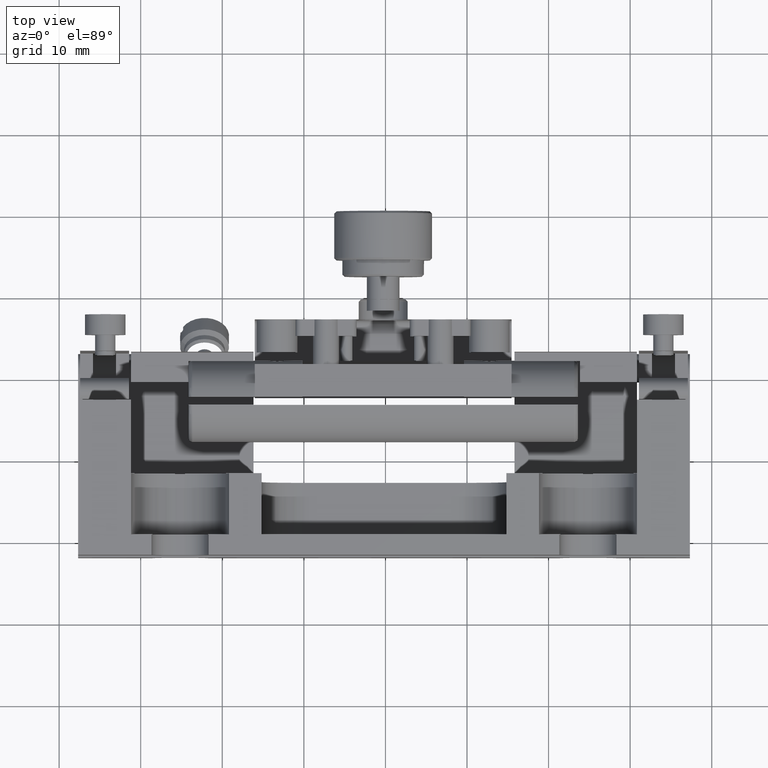
[diagram: clean part render]
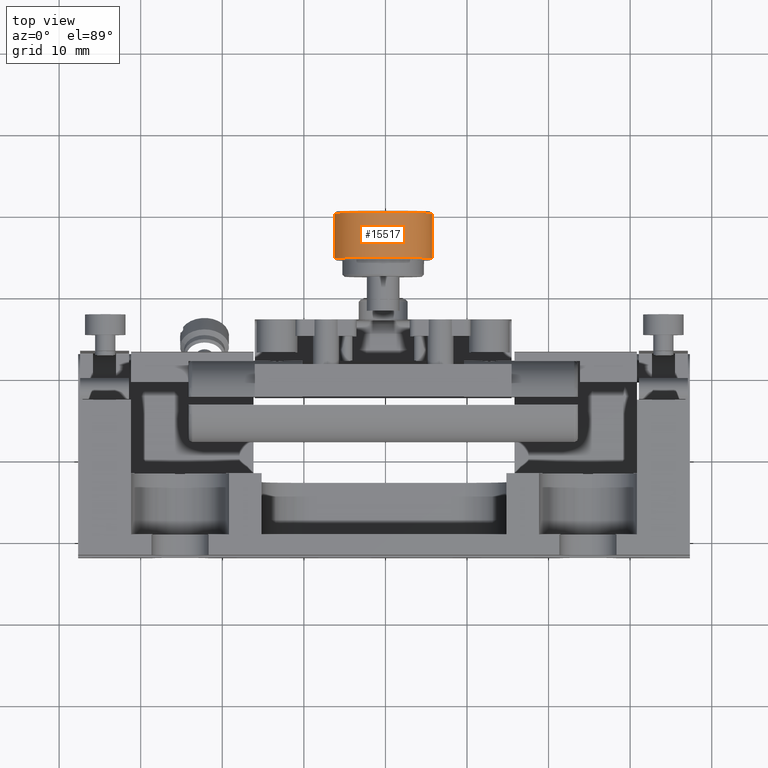
[diagram: same view with one face highlighted and labeled with its STEP entity id]
A machine part, top view. The second image highlights one B-rep face of the part: STEP entity #15517.
In plain terms, the highlighted cylindrical surface (bore or boss wall) has radius 6 mm, axis along (0, 1, 0).
Its self-contained STEP definition (entity closure, byte-faithful):
#95 = CIRCLE ( 'NONE', #6703, 6.000000000000001776 ) ;
#698 = AXIS2_PLACEMENT_3D ( 'NONE', #16077, #11199, #16273 ) ;
#2555 = EDGE_CURVE ( 'NONE', #7247, #7247, #11098, .T. ) ;
#2702 = CARTESIAN_POINT ( 'NONE',  ( 19.72634596628246229, 64.72143821326537250, 65.93264947075056170 ) ) ;
#3191 = CARTESIAN_POINT ( 'NONE',  ( 13.72634596628246051, 70.22143821326537250, 65.93264947075056170 ) ) ;
#3257 = DIRECTION ( 'NONE',  ( -1.424151901242279498E-16, -1.000000000000000000, -2.475030512971477363E-31 ) ) ;
#3759 = FACE_OUTER_BOUND ( 'NONE', #15551, .T. ) ;
#5313 = CYLINDRICAL_SURFACE ( 'NONE', #698, 6.000000000000001776 ) ;
#6481 = AXIS2_PLACEMENT_3D ( 'NONE', #2702, #15438, #8817 ) ;
#6703 = AXIS2_PLACEMENT_3D ( 'NONE', #19479, #3257, #8723 ) ;
#7247 = VERTEX_POINT ( 'NONE', #11602 ) ;
#7310 = ORIENTED_EDGE ( 'NONE', *, *, #8322, .T. ) ;
#8322 = EDGE_CURVE ( 'NONE', #10931, #10931, #95, .T. ) ;
#8723 = DIRECTION ( 'NONE',  ( -1.000000000000000000, 0.000000000000000000, 0.000000000000000000 ) ) ;
#8817 = DIRECTION ( 'NONE',  ( -1.000000000000000000, 0.000000000000000000, 0.000000000000000000 ) ) ;
#10931 = VERTEX_POINT ( 'NONE', #3191 ) ;
#11098 = CIRCLE ( 'NONE', #6481, 6.000000000000001776 ) ;
#11199 = DIRECTION ( 'NONE',  ( 1.424151901242279498E-16, 1.000000000000000000, 2.475030512971477363E-31 ) ) ;
#11602 = CARTESIAN_POINT ( 'NONE',  ( 13.72634596628246051, 64.72143821326537250, 65.93264947075056170 ) ) ;
#13066 = FACE_OUTER_BOUND ( 'NONE', #14478, .T. ) ;
#14478 = EDGE_LOOP ( 'NONE', ( #20128 ) ) ;
#15438 = DIRECTION ( 'NONE',  ( 1.424151901242279498E-16, 1.000000000000000000, 2.475030512971477363E-31 ) ) ;
#15517 = ADVANCED_FACE ( 'NONE', ( #13066, #3759 ), #5313, .T. ) ;
#15551 = EDGE_LOOP ( 'NONE', ( #7310 ) ) ;
#16077 = CARTESIAN_POINT ( 'NONE',  ( 19.72634596628246229, 64.47143821326537250, 65.93264947075056170 ) ) ;
#16273 = DIRECTION ( 'NONE',  ( -1.000000000000000000, 0.000000000000000000, 0.000000000000000000 ) ) ;
#19479 = CARTESIAN_POINT ( 'NONE',  ( 19.72634596628246229, 70.22143821326537250, 65.93264947075056170 ) ) ;
#20128 = ORIENTED_EDGE ( 'NONE', *, *, #2555, .T. ) ;